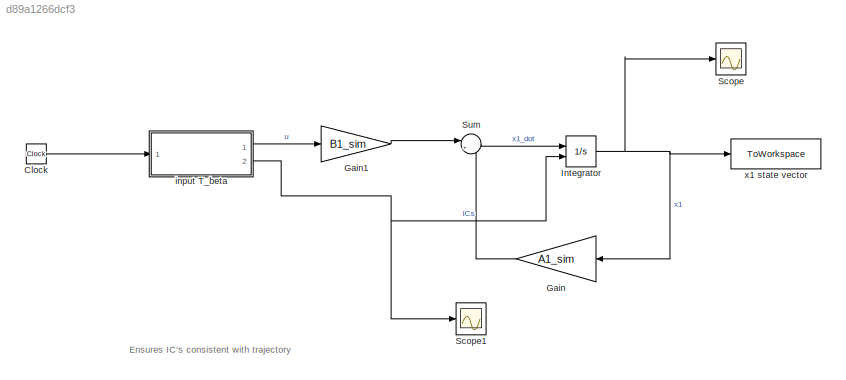
MODEL slx_d89a1266dcf3
KIND model
CONFIG AbsTol = auto
CONFIG EnableMultiTasking = off
CONFIG FixedStep = auto
CONFIG MaxStep = auto
CONFIG MinStep = auto
CONFIG RelTol = 1e-3
CONFIG SampleTimeConstraint = Unconstrained
CONFIG SolverName = VariableStepAuto
CONFIG StartTime = 0.0
CONFIG StopTime = t_sim
BLOCK [Clock] Clock
BLOCK [Gain] Gain
  Gain = A1_sim
  Multiplication = Matrix(K*u)
  NameLocation = top
BLOCK [Gain] Gain1
  Gain = B1_sim
  Multiplication = Matrix(K*u)
BLOCK [Integrator] Integrator
  InitialConditionSource = external
  Ports = [2, 1]
BLOCK [Scope] Scope
  Floating = off
  NumInputPorts = 1
  Ports = [1]
  ScopeSpecificationString = Simulink.scopes.TimeScopeBlockCfg('CurrentConfiguration', extmgr.ConfigurationSet(extmgr.Configuration('Core','General UI',true),extmgr.Configuration('Core','Source UI',true),extmgr.Configuration('Sources','WiredSimulink',true,'DataLoggingVariableName','ScopeData1'),extmgr.Configuration('Visuals','Time Domain',true,'SerializedDisplays',{struct('MinYLimReal','-52555210889106919616631958703708712958...<+2205ch>
BLOCK [Scope] Scope1
  Floating = off
  NumInputPorts = 1
  Ports = [1]
  ScopeSpecificationString = Simulink.scopes.TimeScopeBlockCfg('CurrentConfiguration', extmgr.ConfigurationSet(extmgr.Configuration('Core','General UI',true),extmgr.Configuration('Core','Source UI',true),extmgr.Configuration('Sources','WiredSimulink',true,'DataLoggingVariableName','ScopeData2'),extmgr.Configuration('Visuals','Time Domain',true,'SerializedDisplays',{struct('MinYLimReal','-62.49486','MaxYLimReal','62.49943','YL...<+1438ch>
BLOCK [Sum] Sum
  Inputs = |++
  Ports = [2, 1]
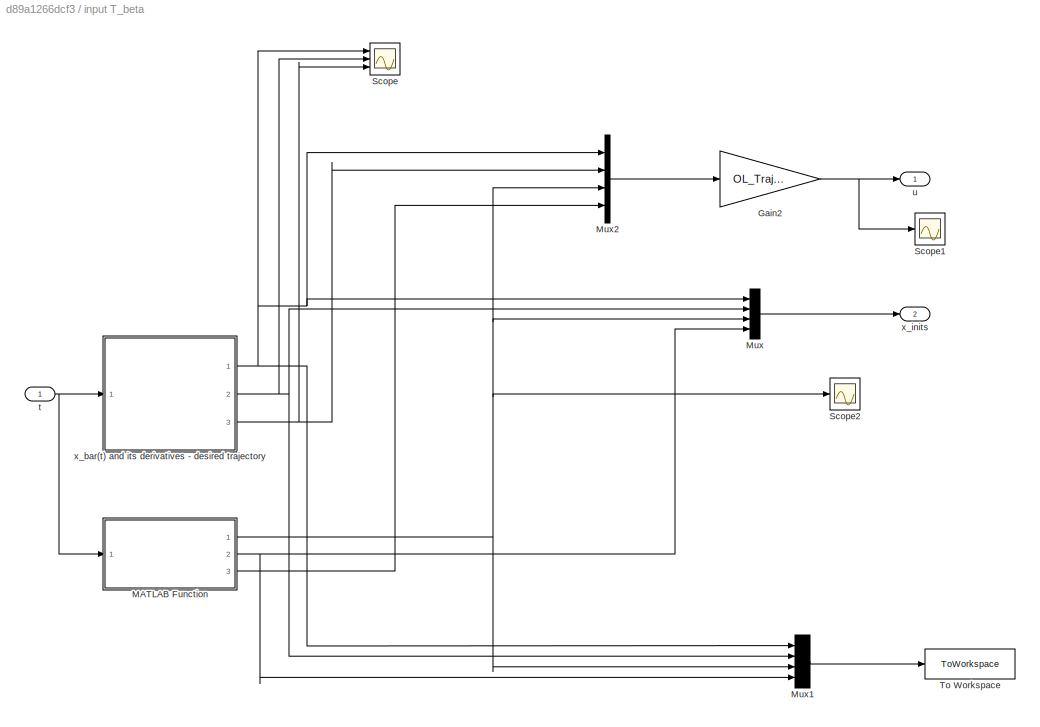
BLOCK [SubSystem] input T_beta
  Ports = [1, 2]
  RequestExecContextInheritance = off
BLOCK [Gain] input T_beta/Gain2
  Gain = OL_Traj_Gain
  Multiplication = Matrix(K*u)
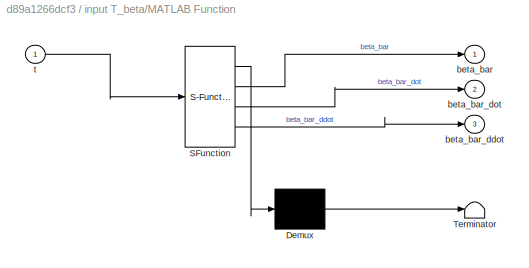
BLOCK [SubSystem] input T_beta/MATLAB Function
  ErrorFcn = Stateflow.Translate.translate
  PermitHierarchicalResolution = ExplicitOnly
  Ports = [1, 3]
  RequestExecContextInheritance = off
  SFBlockType = MATLAB Function
  TreatAsAtomicUnit = on
BLOCK [Demux] input T_beta/MATLAB Function/ Demux 
  Outputs = 1
  Ports = [1, 1]
BLOCK [S-Function] input T_beta/MATLAB Function/ SFunction 
  EnableBusSupport = on
  FunctionName = sf_sfun
  PortCounts = [1 4]
  Ports = [1, 4]
  SFcnIsStateOwnerBlock = off
  SFunctionDeploymentMode = off
  Tag = Stateflow S-Function 1
BLOCK [Terminator] input T_beta/MATLAB Function/ Terminator 
BLOCK [Outport] input T_beta/MATLAB Function/beta_bar
BLOCK [Outport] input T_beta/MATLAB Function/beta_bar_ddot
  Port = 3
BLOCK [Outport] input T_beta/MATLAB Function/beta_bar_dot
  Port = 2
BLOCK [Inport] input T_beta/MATLAB Function/t
BLOCK [Mux] input T_beta/Mux
  DisplayOption = bar
  Ports = [4, 1]
BLOCK [Mux] input T_beta/Mux1
  DisplayOption = bar
  Ports = [4, 1]
BLOCK [Mux] input T_beta/Mux2
  DisplayOption = bar
  Ports = [4, 1]
BLOCK [Scope] input T_beta/Scope
  Floating = off
  NumInputPorts = 3
  Ports = [3]
  ScopeSpecificationString = Simulink.scopes.TimeScopeBlockCfg('CurrentConfiguration', extmgr.ConfigurationSet(extmgr.Configuration('Core','General UI',true),extmgr.Configuration('Core','Source UI',true),extmgr.Configuration('Sources','WiredSimulink',true),extmgr.Configuration('Visuals','Time Domain',true,'SerializedDisplays',{struct('MinYLimReal','-62.49486','MaxYLimReal','62.49943','YLabelReal','','MinYLimMag','0.00000','Ma...<+1560ch>
BLOCK [Scope] input T_beta/Scope1
  Floating = off
  NumInputPorts = 1
  Ports = [1]
  ScopeSpecificationString = Simulink.scopes.TimeScopeBlockCfg('CurrentConfiguration', extmgr.ConfigurationSet(extmgr.Configuration('Core','General UI',true),extmgr.Configuration('Core','Source UI',true),extmgr.Configuration('Sources','WiredSimulink',true,'DataLoggingVariableName','ScopeData1'),extmgr.Configuration('Visuals','Time Domain',true,'SerializedDisplays',{struct('MinYLimReal','-132876876.33355','MaxYLimReal','132867...<+1486ch>
BLOCK [Scope] input T_beta/Scope2
  Floating = off
  NumInputPorts = 1
  Ports = [1]
  ScopeSpecificationString = Simulink.scopes.TimeScopeBlockCfg('CurrentConfiguration', extmgr.ConfigurationSet(extmgr.Configuration('Core','General UI',true),extmgr.Configuration('Core','Source UI',true),extmgr.Configuration('Sources','WiredSimulink',true,'DataLoggingVariableName','ScopeData2'),extmgr.Configuration('Visuals','Time Domain',true,'SerializedDisplays',{struct('MinYLimReal','-0.35662','MaxYLimReal','0.3566','YLabe...<+1441ch>
BLOCK [ToWorkspace] input T_beta/To Workspace
  FixptAsFi = on
  MaxDataPoints = inf
  Ports = [1]
  SampleTime = -1
  VariableName = x1_bar
BLOCK [Inport] input T_beta/t
BLOCK [Outport] input T_beta/u
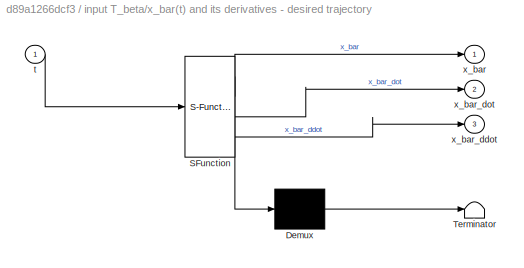
BLOCK [SubSystem] input T_beta/x_bar(t) and its derivatives - desired trajectory
  ErrorFcn = Stateflow.Translate.translate
  PermitHierarchicalResolution = ExplicitOnly
  Ports = [1, 3]
  RequestExecContextInheritance = off
  SFBlockType = MATLAB Function
  TreatAsAtomicUnit = on
BLOCK [Demux] input T_beta/x_bar(t) and its derivatives - desired trajectory/ Demux 
  Outputs = 1
  Ports = [1, 1]
BLOCK [S-Function] input T_beta/x_bar(t) and its derivatives - desired trajectory/ SFunction 
  EnableBusSupport = on
  FunctionName = sf_sfun
  Parameters = omega_sim,r_sim
  PortCounts = [1 4]
  Ports = [1, 4]
  SFcnIsStateOwnerBlock = off
  SFunctionDeploymentMode = off
  Tag = Stateflow S-Function 2
BLOCK [Terminator] input T_beta/x_bar(t) and its derivatives - desired trajectory/ Terminator 
BLOCK [Inport] input T_beta/x_bar(t) and its derivatives - desired trajectory/t
BLOCK [Outport] input T_beta/x_bar(t) and its derivatives - desired trajectory/x_bar
BLOCK [Outport] input T_beta/x_bar(t) and its derivatives - desired trajectory/x_bar_ddot
  Port = 3
BLOCK [Outport] input T_beta/x_bar(t) and its derivatives - desired trajectory/x_bar_dot
  Port = 2
BLOCK [Outport] input T_beta/x_inits
  Port = 2
BLOCK [ToWorkspace] x1 state vector
  FixptAsFi = on
  MaxDataPoints = inf
  Ports = [1]
  SampleTime = -1
  VariableName = x1
ANNOTATION (root): Ensures IC's consistent with trajectory
LINE Clock:1 -> input T_beta:1
LINE Gain1:1 -> Sum:1
LINE Gain:1 -> Sum:2
NET Integrator:1 -> Gain:1, Scope:1, x1 state vector:1
LINE Sum:1 -> Integrator:1
NET input T_beta/Gain2:1 -> input T_beta/Scope1:1, input T_beta/u:1
NET input T_beta/MATLAB Function:1 -> input T_beta/Mux1:3, input T_beta/Mux2:3, input T_beta/Mux:3, input T_beta/Scope2:1
NET input T_beta/MATLAB Function:2 -> input T_beta/Mux1:4, input T_beta/Mux:4
LINE input T_beta/MATLAB Function:3 -> input T_beta/Mux2:4
LINE input T_beta/Mux1:1 -> input T_beta/To Workspace:1
LINE input T_beta/Mux2:1 -> input T_beta/Gain2:1
LINE input T_beta/Mux:1 -> input T_beta/x_inits:1
NET input T_beta/t:1 -> input T_beta/MATLAB Function:1, input T_beta/x_bar(t) and its derivatives - desired trajectory:1
NET input T_beta/x_bar(t) and its derivatives - desired trajectory:1 -> input T_beta/Mux1:1, input T_beta/Mux2:1, input T_beta/Mux:1, input T_beta/Scope:1
NET input T_beta/x_bar(t) and its derivatives - desired trajectory:2 -> input T_beta/Mux1:2, input T_beta/Mux:2, input T_beta/Scope:2
NET input T_beta/x_bar(t) and its derivatives - desired trajectory:3 -> input T_beta/Mux2:2, input T_beta/Scope:3
LINE input T_beta:1 -> Gain1:1
NET input T_beta:2 -> Integrator:2, Scope1:1
note: NET lines group one-source signal fan-out (src -> all destinations, sorted); 1:1 wires keep LINE
CHART input T_beta/MATLAB Function states=1 transitions=1
  STATE_LABEL 'eML_blk_kernel()'
  STATE_LABEL 'SCRIPT:\nfunction [beta_bar,beta_bar_dot,beta_bar_ddot]= fcn(t)\n\nbeta_bar = -0.2853*cos(0.2000*t);\nbeta_bar_dot = 0.0571*sin(0.2000*t);\nbeta_bar_ddot = 0.0114*cos(0.2000*t);\n \n\n \n'
CHART input T_beta/x_bar(t) and its derivatives - desired trajectory states=1 transitions=1
  STATE_LABEL 'eML_blk_kernel()'
  STATE_LABEL 'SCRIPT:\nfunction [x_bar,x_bar_dot,x_bar_ddot] = fcn(t,r_sim, omega_sim)\n\nw = omega_sim;\nr = r_sim;\n\nx_bar = r*cos(w*t);\nx_bar_dot = -r*w*sin(w*t);\nx_bar_ddot = -r*w^2*cos(w*t);\n\n'
CHART  states=0 transitions=0
CHART  states=0 transitions=0
